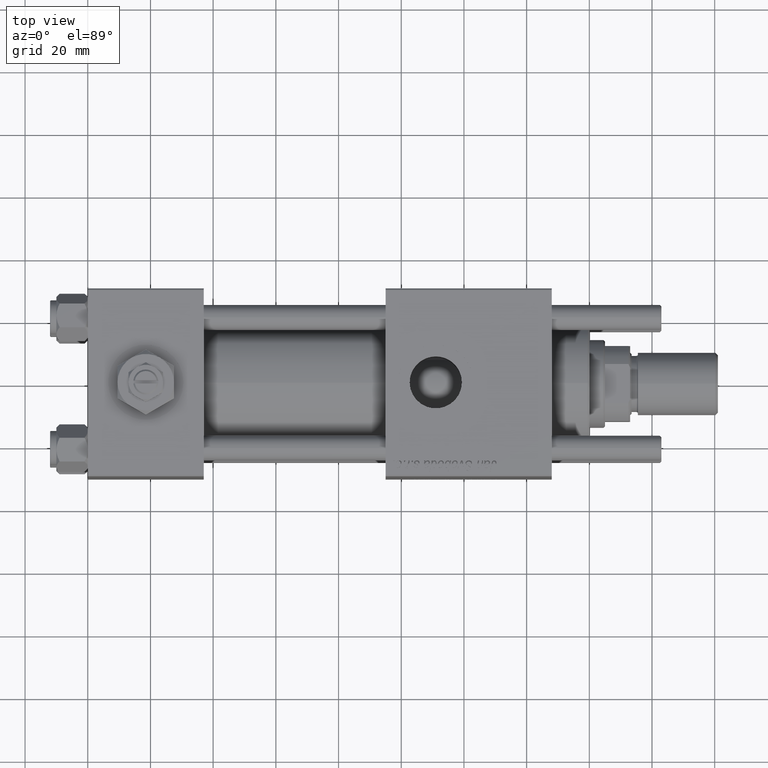
[diagram: clean part render]
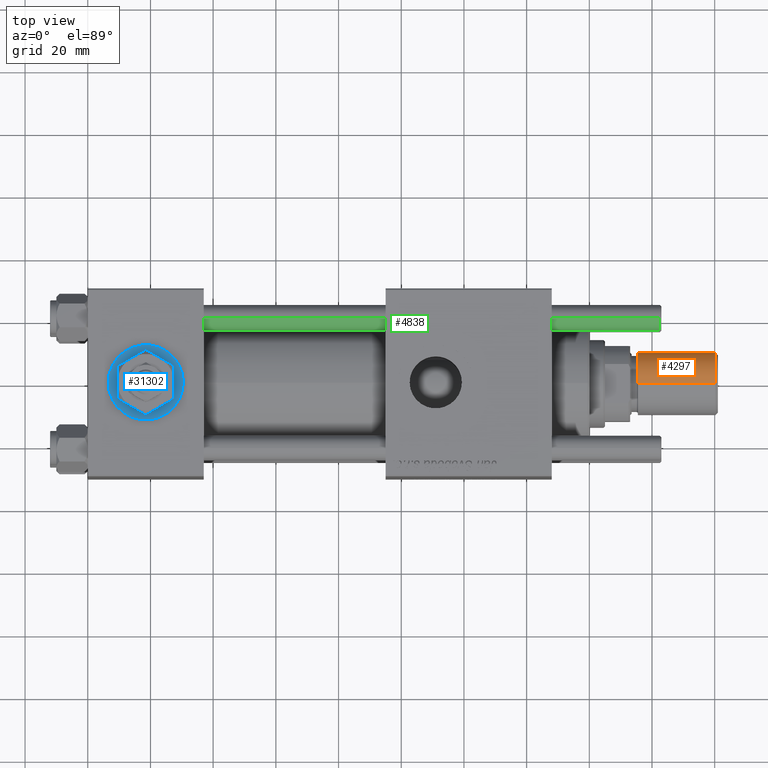
[diagram: same view with three faces highlighted in distinct colors, each labeled with its STEP entity id]
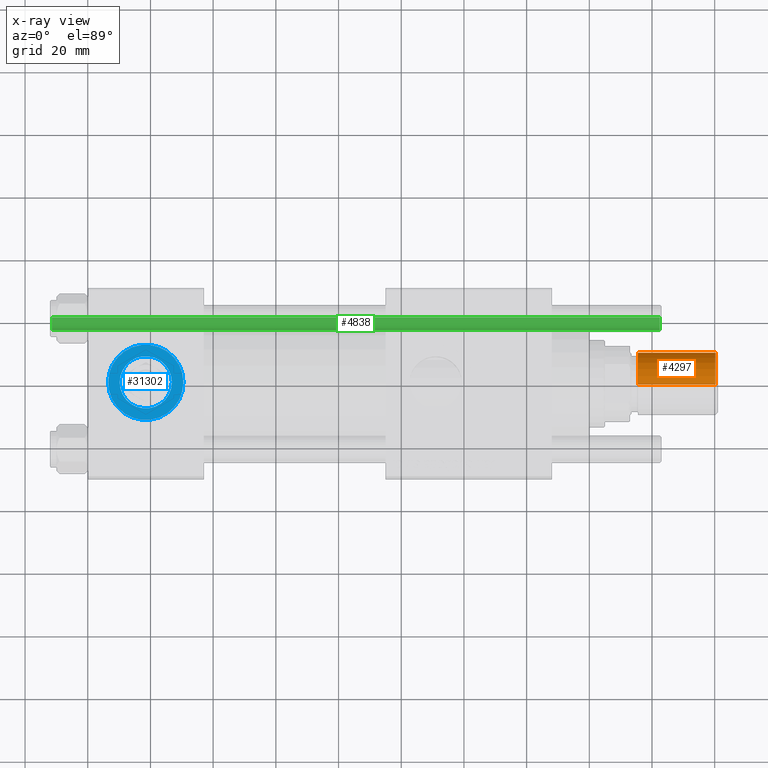
[diagram: x-ray of the same camera — body ghosted, the three highlighted faces saturated]
A machine part, top view with three faces highlighted in distinct colors.
The next image is the same camera in x-ray (body ghosted, the three faces saturated) — at least one of them is partly hidden behind the body in this view.
Their STEP definitions:

[orange] entity #4297 — the highlighted cylindrical surface (edge-blend (fillet) strip) has radius 10 mm, axis along (1, -0, -0).
#340 = VERTEX_POINT ( 'NONE', #24269 ) ;
#2399 = CARTESIAN_POINT ( 'NONE',  ( 10.00000000000000000, 1.224646799147353256E-15, 25.50000000000000000 ) ) ;
#2803 = CYLINDRICAL_SURFACE ( 'NONE', #50426, 10.00000000000000000 ) ;
#4297 = ADVANCED_FACE ( 'NONE', ( #29269 ), #2803, .T. ) ;
#9639 = CARTESIAN_POINT ( 'NONE',  ( -10.00000000000000000, 0.000000000000000000, 0.8000000000000055955 ) ) ;
#10178 = CIRCLE ( 'NONE', #30334, 10.00000000000000000 ) ;
#11109 = EDGE_CURVE ( 'NONE', #340, #18539, #22753, .T. ) ;
#11961 = ORIENTED_EDGE ( 'NONE', *, *, #12665, .F. ) ;
#12665 = EDGE_CURVE ( 'NONE', #18539, #14112, #26519, .T. ) ;
#14112 = VERTEX_POINT ( 'NONE', #9639 ) ;
#15125 = AXIS2_PLACEMENT_3D ( 'NONE', #19791, #57691, #25467 ) ;
#17298 = ORIENTED_EDGE ( 'NONE', *, *, #39381, .T. ) ;
#17484 = CARTESIAN_POINT ( 'NONE',  ( -10.00000000000000000, 0.000000000000000000, 25.50000000000000000 ) ) ;
#18539 = VERTEX_POINT ( 'NONE', #36234 ) ;
#19791 = CARTESIAN_POINT ( 'NONE',  ( 0.000000000000000000, 0.000000000000000000, 25.50000000000000000 ) ) ;
#22753 = CIRCLE ( 'NONE', #15125, 10.00000000000000000 ) ;
#24269 = CARTESIAN_POINT ( 'NONE',  ( 10.00000000000000000, 1.224646799147353256E-15, 25.50000000000000000 ) ) ;
#24666 = DIRECTION ( 'NONE',  ( -0.000000000000000000, -0.000000000000000000, -1.000000000000000000 ) ) ;
#25467 = DIRECTION ( 'NONE',  ( 1.000000000000000000, 0.000000000000000000, 0.000000000000000000 ) ) ;
#26519 = LINE ( 'NONE', #17484, #47018 ) ;
#29269 = FACE_OUTER_BOUND ( 'NONE', #48471, .T. ) ;
#30097 = CARTESIAN_POINT ( 'NONE',  ( 10.00000000000000000, 1.224646799147353256E-15, 0.8000000000000055955 ) ) ;
#30334 = AXIS2_PLACEMENT_3D ( 'NONE', #35545, #40359, #36722 ) ;
#33695 = LINE ( 'NONE', #2399, #44764 ) ;
#35545 = CARTESIAN_POINT ( 'NONE',  ( 0.000000000000000000, 0.000000000000000000, 0.8000000000000055955 ) ) ;
#36234 = CARTESIAN_POINT ( 'NONE',  ( -10.00000000000000000, 0.000000000000000000, 25.50000000000000000 ) ) ;
#36722 = DIRECTION ( 'NONE',  ( 1.000000000000000000, 0.000000000000000000, 0.000000000000000000 ) ) ;
#39381 = EDGE_CURVE ( 'NONE', #340, #42656, #33695, .T. ) ;
#39907 = EDGE_CURVE ( 'NONE', #42656, #14112, #10178, .T. ) ;
#40359 = DIRECTION ( 'NONE',  ( -0.000000000000000000, -0.000000000000000000, 1.000000000000000000 ) ) ;
#42656 = VERTEX_POINT ( 'NONE', #30097 ) ;
#43795 = ORIENTED_EDGE ( 'NONE', *, *, #11109, .F. ) ;
#44031 = CARTESIAN_POINT ( 'NONE',  ( 0.000000000000000000, 0.000000000000000000, 25.50000000000000000 ) ) ;
#44764 = VECTOR ( 'NONE', #24666, 1000.000000000000000 ) ;
#47018 = VECTOR ( 'NONE', #53349, 1000.000000000000000 ) ;
#48471 = EDGE_LOOP ( 'NONE', ( #43795, #17298, #48893, #11961 ) ) ;
#48893 = ORIENTED_EDGE ( 'NONE', *, *, #39907, .T. ) ;
#50426 = AXIS2_PLACEMENT_3D ( 'NONE', #44031, #53067, #53661 ) ;
#53067 = DIRECTION ( 'NONE',  ( -0.000000000000000000, -0.000000000000000000, -1.000000000000000000 ) ) ;
#53349 = DIRECTION ( 'NONE',  ( -0.000000000000000000, -0.000000000000000000, -1.000000000000000000 ) ) ;
#53661 = DIRECTION ( 'NONE',  ( -1.000000000000000000, 0.000000000000000000, 0.000000000000000000 ) ) ;
#57691 = DIRECTION ( 'NONE',  ( 0.000000000000000000, 0.000000000000000000, 1.000000000000000000 ) ) ;

[blue] entity #31302 — the highlighted planar face has unit normal (0, 0, 1).
#327 = CARTESIAN_POINT ( 'NONE',  ( 10.16999999999999638, -2.449316168263869821E-15, 29.79999999999999716 ) ) ;
#813 = CARTESIAN_POINT ( 'NONE',  ( 26.82999999999999829, -3.469446951953614978E-15, 29.79999999999999716 ) ) ;
#2256 = CIRCLE ( 'NONE', #32996, 8.330000000000000071 ) ;
#3200 = CIRCLE ( 'NONE', #46451, 12.00000000000000000 ) ;
#5242 = AXIS2_PLACEMENT_3D ( 'NONE', #27783, #26886, #31995 ) ;
#7872 = VERTEX_POINT ( 'NONE', #813 ) ;
#8138 = DIRECTION ( 'NONE',  ( 1.000000000000000000, 0.000000000000000000, 0.000000000000000000 ) ) ;
#8525 = FACE_BOUND ( 'NONE', #9341, .T. ) ;
#9022 = CARTESIAN_POINT ( 'NONE',  ( 18.50000000000000000, -3.469446951953614978E-15, 29.79999999999999716 ) ) ;
#9341 = EDGE_LOOP ( 'NONE', ( #35475, #28489 ) ) ;
#9983 = CARTESIAN_POINT ( 'NONE',  ( 18.50000000000000000, -3.469446951953614978E-15, 29.79999999999999716 ) ) ;
#10843 = AXIS2_PLACEMENT_3D ( 'NONE', #9983, #23839, #41592 ) ;
#13291 = VERTEX_POINT ( 'NONE', #327 ) ;
#13470 = ORIENTED_EDGE ( 'NONE', *, *, #46767, .T. ) ;
#15865 = DIRECTION ( 'NONE',  ( 0.000000000000000000, 0.000000000000000000, 1.000000000000000000 ) ) ;
#16431 = VERTEX_POINT ( 'NONE', #18563 ) ;
#16852 = AXIS2_PLACEMENT_3D ( 'NONE', #9022, #35526, #8138 ) ;
#17686 = CARTESIAN_POINT ( 'NONE',  ( 18.50000000000000000, -3.469446951953614978E-15, 29.79999999999999716 ) ) ;
#18563 = CARTESIAN_POINT ( 'NONE',  ( 30.50000000000000000, -3.469446951953614978E-15, 29.79999999999999716 ) ) ;
#22672 = PLANE ( 'NONE',  #5242 ) ;
#23579 = CIRCLE ( 'NONE', #16852, 8.330000000000000071 ) ;
#23839 = DIRECTION ( 'NONE',  ( 0.000000000000000000, 0.000000000000000000, 1.000000000000000000 ) ) ;
#24222 = CARTESIAN_POINT ( 'NONE',  ( 6.499999999999997335, -1.999870792976790833E-15, 29.79999999999999716 ) ) ;
#26886 = DIRECTION ( 'NONE',  ( 0.000000000000000000, 0.000000000000000000, 1.000000000000000000 ) ) ;
#27783 = CARTESIAN_POINT ( 'NONE',  ( 18.50000000000000000, -3.469446951953614978E-15, 29.79999999999999716 ) ) ;
#28489 = ORIENTED_EDGE ( 'NONE', *, *, #34908, .F. ) ;
#28656 = EDGE_CURVE ( 'NONE', #7872, #13291, #2256, .T. ) ;
#30290 = DIRECTION ( 'NONE',  ( 1.000000000000000000, 0.000000000000000000, 0.000000000000000000 ) ) ;
#31302 = ADVANCED_FACE ( 'NONE', ( #8525, #35906 ), #22672, .T. ) ;
#31974 = CIRCLE ( 'NONE', #10843, 12.00000000000000000 ) ;
#31995 = DIRECTION ( 'NONE',  ( 1.000000000000000000, 0.000000000000000000, -0.000000000000000000 ) ) ;
#32996 = AXIS2_PLACEMENT_3D ( 'NONE', #58284, #15865, #30290 ) ;
#34908 = EDGE_CURVE ( 'NONE', #13291, #7872, #23579, .T. ) ;
#35475 = ORIENTED_EDGE ( 'NONE', *, *, #28656, .F. ) ;
#35526 = DIRECTION ( 'NONE',  ( 0.000000000000000000, 0.000000000000000000, 1.000000000000000000 ) ) ;
#35906 = FACE_OUTER_BOUND ( 'NONE', #46091, .T. ) ;
#36037 = DIRECTION ( 'NONE',  ( 1.000000000000000000, 0.000000000000000000, 0.000000000000000000 ) ) ;
#41035 = VERTEX_POINT ( 'NONE', #24222 ) ;
#41592 = DIRECTION ( 'NONE',  ( 1.000000000000000000, 0.000000000000000000, 0.000000000000000000 ) ) ;
#44489 = DIRECTION ( 'NONE',  ( 0.000000000000000000, 0.000000000000000000, 1.000000000000000000 ) ) ;
#46091 = EDGE_LOOP ( 'NONE', ( #49016, #13470 ) ) ;
#46451 = AXIS2_PLACEMENT_3D ( 'NONE', #17686, #44489, #36037 ) ;
#46767 = EDGE_CURVE ( 'NONE', #41035, #16431, #31974, .T. ) ;
#47290 = EDGE_CURVE ( 'NONE', #16431, #41035, #3200, .T. ) ;
#49016 = ORIENTED_EDGE ( 'NONE', *, *, #47290, .T. ) ;
#58284 = CARTESIAN_POINT ( 'NONE',  ( 18.50000000000000000, -3.469446951953614978E-15, 29.79999999999999716 ) ) ;

[green] entity #4838 — the highlighted cylindrical surface (edge-blend (fillet) strip) has radius 4 mm, axis along (1, -0, -0).
#499 = CARTESIAN_POINT ( 'NONE',  ( 4.000000000000000000, 4.898587196589412829E-16, 194.5000000000000568 ) ) ;
#2111 = ORIENTED_EDGE ( 'NONE', *, *, #30592, .F. ) ;
#3094 = DIRECTION ( 'NONE',  ( -0.000000000000000000, -0.000000000000000000, 1.000000000000000000 ) ) ;
#4838 = ADVANCED_FACE ( 'NONE', ( #45702 ), #54747, .T. ) ;
#5724 = CARTESIAN_POINT ( 'NONE',  ( -4.000000000000000000, 0.000000000000000000, 195.0000000000000000 ) ) ;
#8182 = CARTESIAN_POINT ( 'NONE',  ( 0.000000000000000000, 0.000000000000000000, 0.5000000000000004441 ) ) ;
#11011 = VERTEX_POINT ( 'NONE', #55007 ) ;
#14402 = DIRECTION ( 'NONE',  ( -0.000000000000000000, -0.000000000000000000, -1.000000000000000000 ) ) ;
#14850 = VERTEX_POINT ( 'NONE', #499 ) ;
#15579 = CARTESIAN_POINT ( 'NONE',  ( 4.000000000000000000, 4.898587196589412829E-16, 0.5000000000000004441 ) ) ;
#15884 = AXIS2_PLACEMENT_3D ( 'NONE', #41909, #38000, #51865 ) ;
#16368 = EDGE_LOOP ( 'NONE', ( #2111, #46914, #20274, #16880 ) ) ;
#16880 = ORIENTED_EDGE ( 'NONE', *, *, #51222, .T. ) ;
#20274 = ORIENTED_EDGE ( 'NONE', *, *, #35070, .T. ) ;
#20765 = DIRECTION ( 'NONE',  ( -0.000000000000000000, -0.000000000000000000, -1.000000000000000000 ) ) ;
#21606 = AXIS2_PLACEMENT_3D ( 'NONE', #49920, #14402, #36362 ) ;
#22496 = CARTESIAN_POINT ( 'NONE',  ( -4.000000000000000000, 0.000000000000000000, 194.5000000000000568 ) ) ;
#23168 = DIRECTION ( 'NONE',  ( -0.000000000000000000, -0.000000000000000000, -1.000000000000000000 ) ) ;
#26330 = VECTOR ( 'NONE', #20765, 1000.000000000000000 ) ;
#30372 = LINE ( 'NONE', #53846, #26330 ) ;
#30592 = EDGE_CURVE ( 'NONE', #14850, #54556, #30372, .T. ) ;
#32105 = AXIS2_PLACEMENT_3D ( 'NONE', #8182, #3094, #44904 ) ;
#35070 = EDGE_CURVE ( 'NONE', #53580, #11011, #51477, .T. ) ;
#35073 = CIRCLE ( 'NONE', #15884, 4.000000000000000000 ) ;
#36362 = DIRECTION ( 'NONE',  ( -1.000000000000000000, 0.000000000000000000, 0.000000000000000000 ) ) ;
#38000 = DIRECTION ( 'NONE',  ( 0.000000000000000000, 0.000000000000000000, -1.000000000000000000 ) ) ;
#38860 = CIRCLE ( 'NONE', #32105, 4.000000000000000000 ) ;
#38978 = VECTOR ( 'NONE', #23168, 1000.000000000000000 ) ;
#41909 = CARTESIAN_POINT ( 'NONE',  ( 0.000000000000000000, 0.000000000000000000, 194.5000000000000568 ) ) ;
#44904 = DIRECTION ( 'NONE',  ( 1.000000000000000000, 0.000000000000000000, 0.000000000000000000 ) ) ;
#45702 = FACE_OUTER_BOUND ( 'NONE', #16368, .T. ) ;
#46914 = ORIENTED_EDGE ( 'NONE', *, *, #53905, .T. ) ;
#49920 = CARTESIAN_POINT ( 'NONE',  ( 0.000000000000000000, 0.000000000000000000, 195.0000000000000000 ) ) ;
#51222 = EDGE_CURVE ( 'NONE', #11011, #54556, #38860, .T. ) ;
#51477 = LINE ( 'NONE', #5724, #38978 ) ;
#51865 = DIRECTION ( 'NONE',  ( 1.000000000000000000, 0.000000000000000000, 0.000000000000000000 ) ) ;
#53580 = VERTEX_POINT ( 'NONE', #22496 ) ;
#53846 = CARTESIAN_POINT ( 'NONE',  ( 4.000000000000000000, 4.898587196589412829E-16, 195.0000000000000000 ) ) ;
#53905 = EDGE_CURVE ( 'NONE', #14850, #53580, #35073, .T. ) ;
#54556 = VERTEX_POINT ( 'NONE', #15579 ) ;
#54747 = CYLINDRICAL_SURFACE ( 'NONE', #21606, 4.000000000000000000 ) ;
#55007 = CARTESIAN_POINT ( 'NONE',  ( -4.000000000000000000, 0.000000000000000000, 0.5000000000000004441 ) ) ;